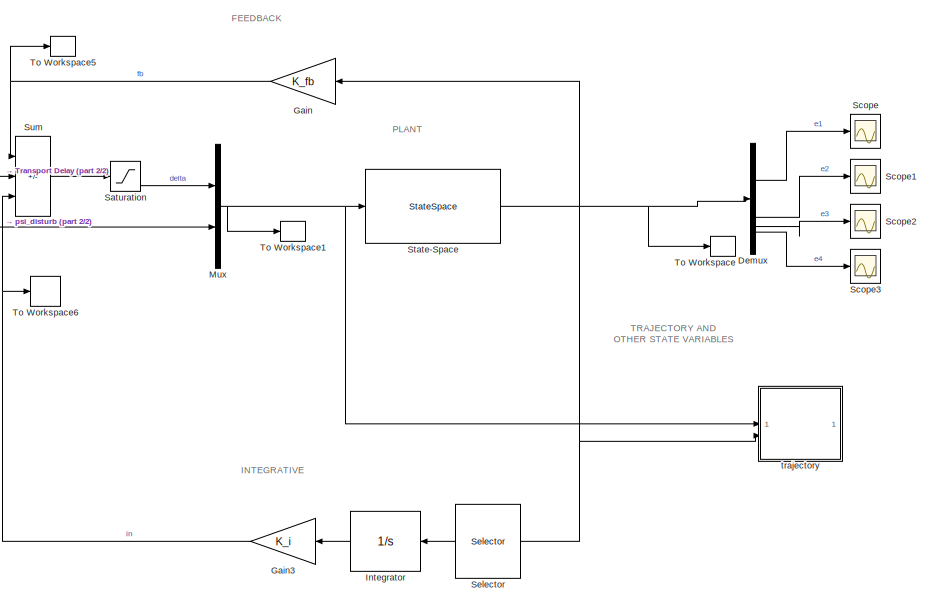
[diagram: root canvas - part 1/2, right side, full height]
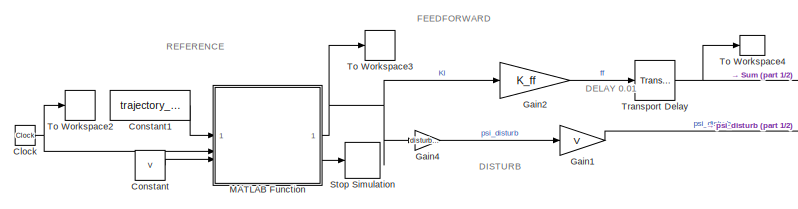
[diagram: root canvas - part 2/2, middle left region]
MODEL slx_1286b24e614e
KIND model
CONFIG AbsTol = auto
CONFIG EnableMultiTasking = on
CONFIG FixedStep = 0.0001
CONFIG MaxStep = auto
CONFIG MinStep = auto
CONFIG RelTol = 1e-3
CONFIG SampleTimeConstraint = Unconstrained
CONFIG SolverName = ode4
CONFIG StartTime = 0.0
CONFIG StopTime = t_end_sim
BLOCK [Clock] Clock
BLOCK [Constant] Constant
  Value = V
BLOCK [Constant] Constant1
  Value = trajectory_type
BLOCK [Demux] Demux
BLOCK [Gain] Gain
  Gain = K_fb
  Multiplication = Matrix(K*u)
  NameLocation = top
BLOCK [Gain] Gain1
  Gain = V
BLOCK [Gain] Gain2
  Gain = K_ff
BLOCK [Gain] Gain3
  Gain = K_i
  NameLocation = top
BLOCK [Gain] Gain4
  Gain = disturb_flag
BLOCK [Integrator] Integrator
  NameLocation = top
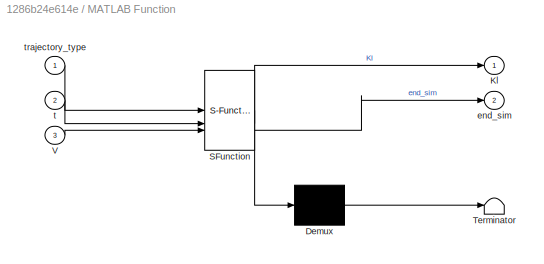
BLOCK [SubSystem] MATLAB Function
  ErrorFcn = Stateflow.Translate.translate
  PermitHierarchicalResolution = ExplicitOnly
  SFBlockType = MATLAB Function
  TreatAsAtomicUnit = on
BLOCK [Demux] MATLAB Function/ Demux 
  Outputs = 1
BLOCK [S-Function] MATLAB Function/ SFunction 
  EnableBusSupport = on
  FunctionName = sf_sfun
  PortCounts = [3 3]
  SFcnIsStateOwnerBlock = off
  SFunctionDeploymentMode = off
  Tag = Stateflow S-Function 2
BLOCK [Terminator] MATLAB Function/ Terminator 
BLOCK [Outport] MATLAB Function/Kl
BLOCK [Inport] MATLAB Function/V
  Port = 3
BLOCK [Outport] MATLAB Function/end_sim
  Port = 2
BLOCK [Inport] MATLAB Function/t
  Port = 2
BLOCK [Inport] MATLAB Function/trajectory_type
BLOCK [Mux] Mux
  DisplayOption = bar
  Inputs = 2
BLOCK [Saturate] Saturation
  LowerLimit = -max_delta
  UpperLimit = max_delta
BLOCK [Scope] Scope
  Floating = off
  NumInputPorts = 1
  ScopeSpecificationString = Simulink.scopes.TimeScopeBlockCfg('CurrentConfiguration', extmgr.ConfigurationSet(extmgr.Configuration('Core','General UI',true),extmgr.Configuration('Core','Source UI',true),extmgr.Configuration('Sources','WiredSimulink',true),extmgr.Configuration('Visuals','Time Domain',true,'SerializedDisplays',{struct('MinYLimReal','-0.02321','MaxYLimReal','0.02321','YLabelReal','','MinYLimMag','0.00000','MaxY...<+1399ch>
BLOCK [Scope] Scope1
  Floating = off
  NumInputPorts = 1
  ScopeSpecificationString = Simulink.scopes.TimeScopeBlockCfg('CurrentConfiguration', extmgr.ConfigurationSet(extmgr.Configuration('Core','General UI',true),extmgr.Configuration('Core','Source UI',true),extmgr.Configuration('Sources','WiredSimulink',true,'DataLoggingVariableName','ScopeData1'),extmgr.Configuration('Visuals','Time Domain',true,'SerializedDisplays',{struct('MinYLimReal','-17.5091','MaxYLimReal','17.50916','YLa...<+1442ch>
BLOCK [Scope] Scope2
  Floating = off
  NumInputPorts = 1
  ScopeSpecificationString = Simulink.scopes.TimeScopeBlockCfg('CurrentConfiguration', extmgr.ConfigurationSet(extmgr.Configuration('Core','General UI',true),extmgr.Configuration('Core','Source UI',true),extmgr.Configuration('Sources','WiredSimulink',true,'DataLoggingVariableName','ScopeData2'),extmgr.Configuration('Visuals','Time Domain',true,'SerializedDisplays',{struct('MinYLimReal','-0.78831','MaxYLimReal','0.78497','YLab...<+1438ch>
BLOCK [Scope] Scope3
  Floating = off
  NumInputPorts = 1
  ScopeSpecificationString = Simulink.scopes.TimeScopeBlockCfg('CurrentConfiguration', extmgr.ConfigurationSet(extmgr.Configuration('Core','General UI',true),extmgr.Configuration('Core','Source UI',true),extmgr.Configuration('Sources','WiredSimulink',true,'DataLoggingVariableName','ScopeData3'),extmgr.Configuration('Visuals','Time Domain',true,'SerializedDisplays',{struct('MinYLimReal','-1.00000','MaxYLimReal','1.00000','YLab...<+1438ch>
BLOCK [Selector] Selector
  IndexOptions = Index vector (dialog)
  Indices = [1]
  InputPortWidth = 4
  OutputSizes = 1
BLOCK [StateSpace] State-Space
  A = A
  B = B
  C = C
  D = D
  InitialCondition = x0
  ParameterTunability = Unconstrained
BLOCK [Stop] Stop Simulation
BLOCK [Sum] Sum
  IconShape = rectangular
  Inputs = -+-
BLOCK [ToWorkspace] To Workspace
  FixptAsFi = on
  MaxDataPoints = inf
  SampleTime = -1
  VariableName = e
BLOCK [ToWorkspace] To Workspace1
  FixptAsFi = on
  MaxDataPoints = inf
  SampleTime = -1
  VariableName = u
BLOCK [ToWorkspace] To Workspace2
  FixptAsFi = on
  MaxDataPoints = inf
  SampleTime = -1
  VariableName = t
BLOCK [ToWorkspace] To Workspace3
  FixptAsFi = on
  MaxDataPoints = inf
  SampleTime = -1
  VariableName = Kl
BLOCK [ToWorkspace] To Workspace4
  FixptAsFi = on
  MaxDataPoints = inf
  SampleTime = -1
  VariableName = FF
BLOCK [ToWorkspace] To Workspace5
  FixptAsFi = on
  MaxDataPoints = inf
  SampleTime = -1
  VariableName = FB
BLOCK [ToWorkspace] To Workspace6
  FixptAsFi = on
  MaxDataPoints = inf
  SampleTime = -1
  VariableName = FI
BLOCK [TransportDelay] Transport Delay
  DelayTime = ff_delay
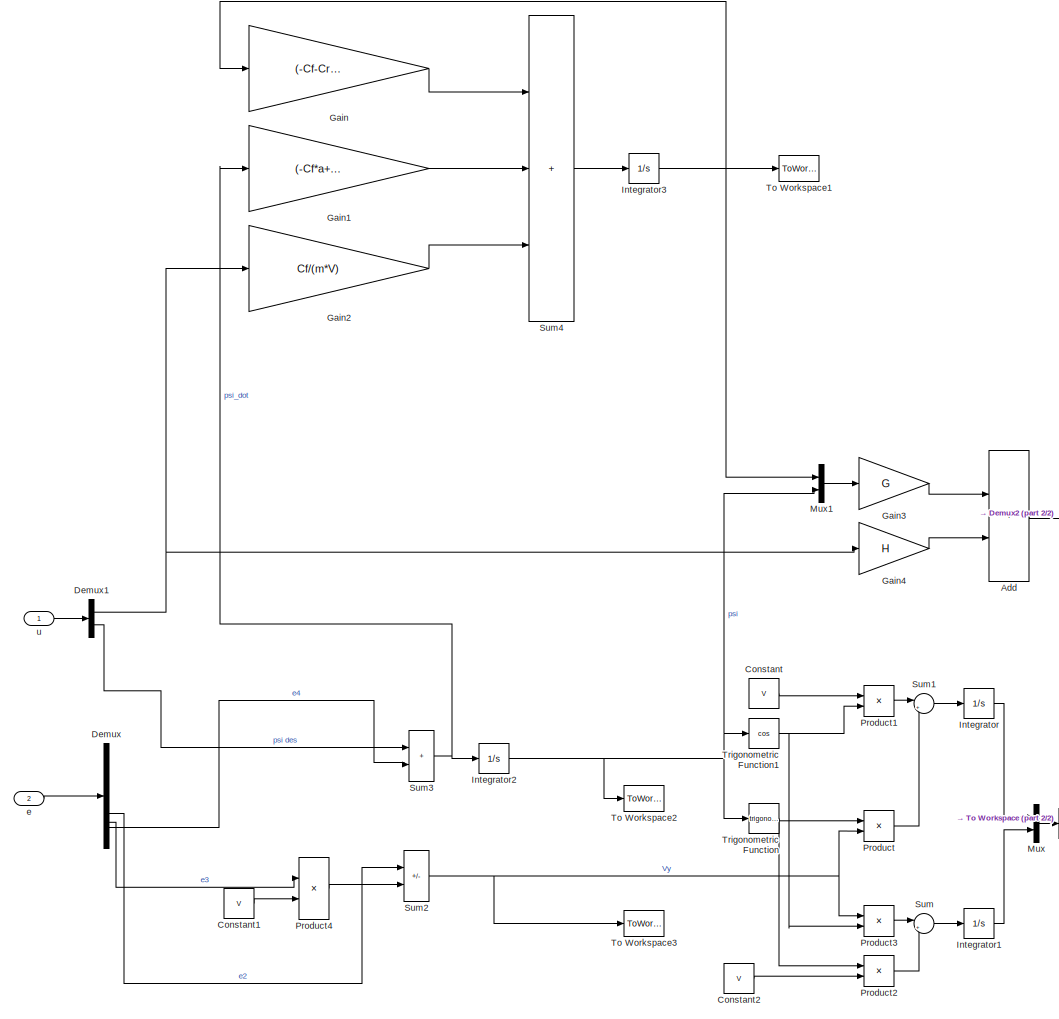
[diagram: trajectory - part 1/2, most of the canvas]
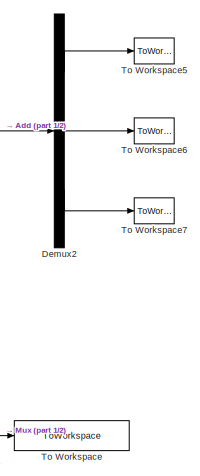
[diagram: trajectory - part 2/2, middle right region]
BLOCK [SubSystem] trajectory
BLOCK [Sum] trajectory/Add
  IconShape = rectangular
BLOCK [Constant] trajectory/Constant
  Value = V
BLOCK [Constant] trajectory/Constant1
  Value = V
BLOCK [Constant] trajectory/Constant2
  Value = V
BLOCK [Demux] trajectory/Demux
BLOCK [Demux] trajectory/Demux1
  Outputs = 2
BLOCK [Demux] trajectory/Demux2
  Outputs = 3
BLOCK [Gain] trajectory/Gain
  Gain = (-Cf-Cr)/(m*V)
BLOCK [Gain] trajectory/Gain1
  Gain = (-Cf*a+Cr*b-m*V^2)/(m*V^2)
BLOCK [Gain] trajectory/Gain2
  Gain = Cf/(m*V)
BLOCK [Gain] trajectory/Gain3
  Gain = G
  Multiplication = Matrix(K*u)
BLOCK [Gain] trajectory/Gain4
  Gain = H
  Multiplication = Matrix(K*u)
BLOCK [Integrator] trajectory/Integrator
BLOCK [Integrator] trajectory/Integrator1
BLOCK [Integrator] trajectory/Integrator2
BLOCK [Integrator] trajectory/Integrator3
BLOCK [Mux] trajectory/Mux
  DisplayOption = bar
  Inputs = 2
BLOCK [Mux] trajectory/Mux1
  DisplayOption = bar
  Inputs = 2
BLOCK [Product] trajectory/Product
  InputSameDT = on
  OutDataTypeStr = Inherit: Same as first input
  SaturateOnIntegerOverflow = on
BLOCK [Product] trajectory/Product1
  InputSameDT = on
  OutDataTypeStr = Inherit: Same as first input
  SaturateOnIntegerOverflow = on
BLOCK [Product] trajectory/Product2
  InputSameDT = on
  OutDataTypeStr = Inherit: Same as first input
  SaturateOnIntegerOverflow = on
BLOCK [Product] trajectory/Product3
  InputSameDT = on
  OutDataTypeStr = Inherit: Same as first input
  SaturateOnIntegerOverflow = on
BLOCK [Product] trajectory/Product4
BLOCK [Sum] trajectory/Sum
  InputSameDT = on
  Inputs = |++
  OutDataTypeStr = Inherit: Same as first input
  SaturateOnIntegerOverflow = on
BLOCK [Sum] trajectory/Sum1
  InputSameDT = on
  Inputs = |+-
  OutDataTypeStr = Inherit: Same as first input
  SaturateOnIntegerOverflow = on
BLOCK [Sum] trajectory/Sum2
  IconShape = rectangular
  Inputs = +-
BLOCK [Sum] trajectory/Sum3
  IconShape = rectangular
BLOCK [Sum] trajectory/Sum4
  IconShape = rectangular
  Inputs = +++
BLOCK [ToWorkspace] trajectory/To Workspace
  InitFcn = ParentName = get_param(gcb,'Parent');                                              \ncont = max(find(ParentName=='/'));                                                 \nset_param(gcb,'VariableName',strcat('Var_',ParentName(cont+1:length(ParentName))));\nclear ParentName cont
  MaxDataPoints = inf
  SampleTime = -1
  Save2DSignal = 2-D array (concatenate along first dimension)
  VariableName = Var_trajectory
BLOCK [ToWorkspace] trajectory/To Workspace1
  FixptAsFi = on
  MaxDataPoints = inf
  SampleTime = -1
  VariableName = beta
BLOCK [ToWorkspace] trajectory/To Workspace2
  FixptAsFi = on
  MaxDataPoints = inf
  SampleTime = -1
  VariableName = psi
BLOCK [ToWorkspace] trajectory/To Workspace3
  FixptAsFi = on
  MaxDataPoints = inf
  SampleTime = -1
  VariableName = Vy
BLOCK [ToWorkspace] trajectory/To Workspace5
  FixptAsFi = on
  MaxDataPoints = inf
  SampleTime = -1
  VariableName = rho
BLOCK [ToWorkspace] trajectory/To Workspace6
  FixptAsFi = on
  MaxDataPoints = inf
  SampleTime = -1
  VariableName = alphaF
BLOCK [ToWorkspace] trajectory/To Workspace7
  FixptAsFi = on
  MaxDataPoints = inf
  SampleTime = -1
  VariableName = ay
BLOCK [Trigonometry] trajectory/Trigonometric Function
BLOCK [Trigonometry] trajectory/Trigonometric Function1
  Operator = cos
BLOCK [Inport] trajectory/e
  Port = 2
BLOCK [Inport] trajectory/u
ANNOTATION (root): TRAJECTORY AND OTHER STATE VARIABLES
ANNOTATION (root): DELAY 0.01
ANNOTATION (root): DISTURB
ANNOTATION (root): FEEDBACK
ANNOTATION (root): FEEDFORWARD
ANNOTATION (root): INTEGRATIVE
ANNOTATION (root): PLANT
ANNOTATION (root): REFERENCE
NET Clock:1 -> MATLAB Function:2, To Workspace2:1
LINE Constant1:1 -> MATLAB Function:1
LINE Constant:1 -> MATLAB Function:3
LINE Demux:1 -> Scope:1
LINE Demux:2 -> Scope1:1
LINE Demux:3 -> Scope2:1
LINE Demux:4 -> Scope3:1
LINE Gain1:1 -> Mux:2
LINE Gain2:1 -> Transport Delay:1
NET Gain3:1 -> Sum:3, To Workspace6:1
LINE Gain4:1 -> Gain1:1
NET Gain:1 -> Sum:1, To Workspace5:1
LINE Integrator:1 -> Gain3:1
NET MATLAB Function:1 -> Gain2:1, Gain4:1, To Workspace3:1
LINE MATLAB Function:2 -> Stop Simulation:1
NET Mux:1 -> State-Space:1, To Workspace1:1, trajectory:1
LINE Saturation:1 -> Mux:1
LINE Selector:1 -> Integrator:1
NET State-Space:1 -> Demux:1, Gain:1, Selector:1, To Workspace:1, trajectory:2
LINE Sum:1 -> Saturation:1
NET Transport Delay:1 -> Sum:2, To Workspace4:1
LINE trajectory/Add:1 -> trajectory/Demux2:1
LINE trajectory/Constant1:1 -> trajectory/Product4:2
LINE trajectory/Constant2:1 -> trajectory/Product2:2
LINE trajectory/Constant:1 -> trajectory/Product1:1
NET trajectory/Demux1:1 -> trajectory/Gain2:1, trajectory/Gain4:1
LINE trajectory/Demux1:2 -> trajectory/Sum3:1
LINE trajectory/Demux2:1 -> trajectory/To Workspace5:1
LINE trajectory/Demux2:2 -> trajectory/To Workspace6:1
LINE trajectory/Demux2:3 -> trajectory/To Workspace7:1
LINE trajectory/Demux:2 -> trajectory/Sum2:1
LINE trajectory/Demux:3 -> trajectory/Product4:1
LINE trajectory/Demux:4 -> trajectory/Sum3:2
LINE trajectory/Gain1:1 -> trajectory/Sum4:2
LINE trajectory/Gain2:1 -> trajectory/Sum4:3
LINE trajectory/Gain3:1 -> trajectory/Add:1
LINE trajectory/Gain4:1 -> trajectory/Add:2
LINE trajectory/Gain:1 -> trajectory/Sum4:1
LINE trajectory/Integrator1:1 -> trajectory/Mux:2
NET trajectory/Integrator2:1 -> trajectory/Mux1:2, trajectory/To Workspace2:1, trajectory/Trigonometric Function1:1, trajectory/Trigonometric Function:1
NET trajectory/Integrator3:1 -> trajectory/Gain:1, trajectory/Mux1:1, trajectory/To Workspace1:1
LINE trajectory/Integrator:1 -> trajectory/Mux:1
LINE trajectory/Mux1:1 -> trajectory/Gain3:1
LINE trajectory/Mux:1 -> trajectory/To Workspace:1
LINE trajectory/Product1:1 -> trajectory/Sum1:1
LINE trajectory/Product2:1 -> trajectory/Sum:2
LINE trajectory/Product3:1 -> trajectory/Sum:1
LINE trajectory/Product4:1 -> trajectory/Sum2:2
LINE trajectory/Product:1 -> trajectory/Sum1:2
LINE trajectory/Sum1:1 -> trajectory/Integrator:1
NET trajectory/Sum2:1 -> trajectory/Product3:1, trajectory/Product:2, trajectory/To Workspace3:1
NET trajectory/Sum3:1 -> trajectory/Gain1:1, trajectory/Integrator2:1
LINE trajectory/Sum4:1 -> trajectory/Integrator3:1
LINE trajectory/Sum:1 -> trajectory/Integrator1:1
NET trajectory/Trigonometric Function1:1 -> trajectory/Product1:2, trajectory/Product3:2
NET trajectory/Trigonometric Function:1 -> trajectory/Product2:1, trajectory/Product:1
LINE trajectory/e:1 -> trajectory/Demux:1
LINE trajectory/u:1 -> trajectory/Demux1:1
note: NET lines group one-source signal fan-out (src -> all destinations, sorted); 1:1 wires keep LINE
CHART MATLAB Function states=1 transitions=1
  STATE_LABEL 'eML_blk_kernel()'
  STATE_LABEL 'SCRIPT:\nfunction [Kl, end_sim] = fcn(trajectory_type, t, V)\n\nKl = 0;\nend_sim = 0;\n\nmax_kl = 2e-3;\nif trajectory_type == 1  % EXAMPLE\n    t1=10;\n    t2=20;\n    t3=40;\n    t4=50;\n    t5=60;\n    t6=70;\n    t7=90;\n    t8=100;\n    \n    if t<t1 \n        Kl = 0;\n    elseif t < t2\n        Kl = -max_kl/(t2-t1) *(t-t1);\n    elseif t < t3\n        Kl = -max_kl;\n    elseif t < t4\n        Kl = -max_kl + max_kl/...<+1899ch>'
CHART  states=0 transitions=0
